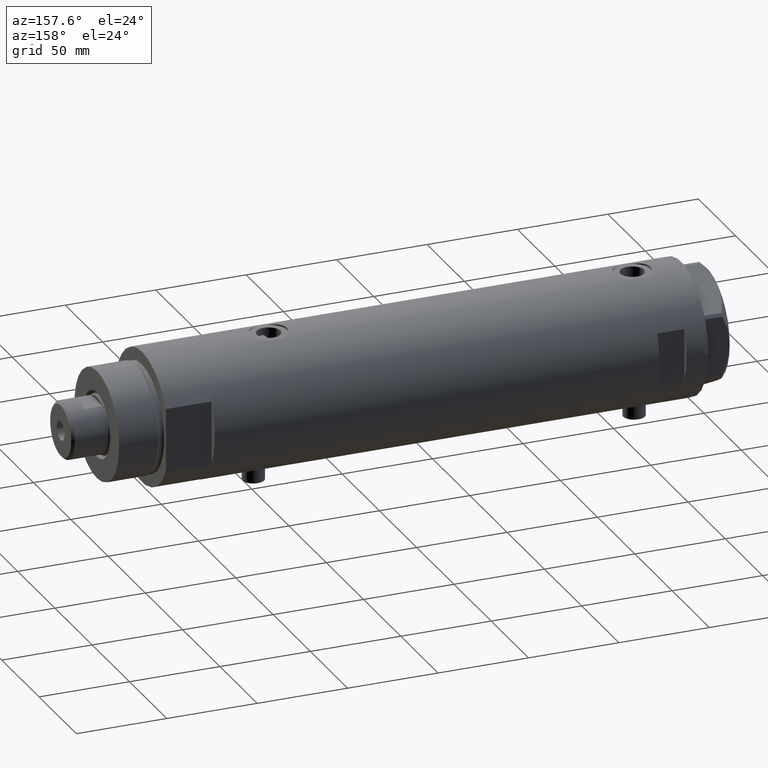
[diagram: clean part render]
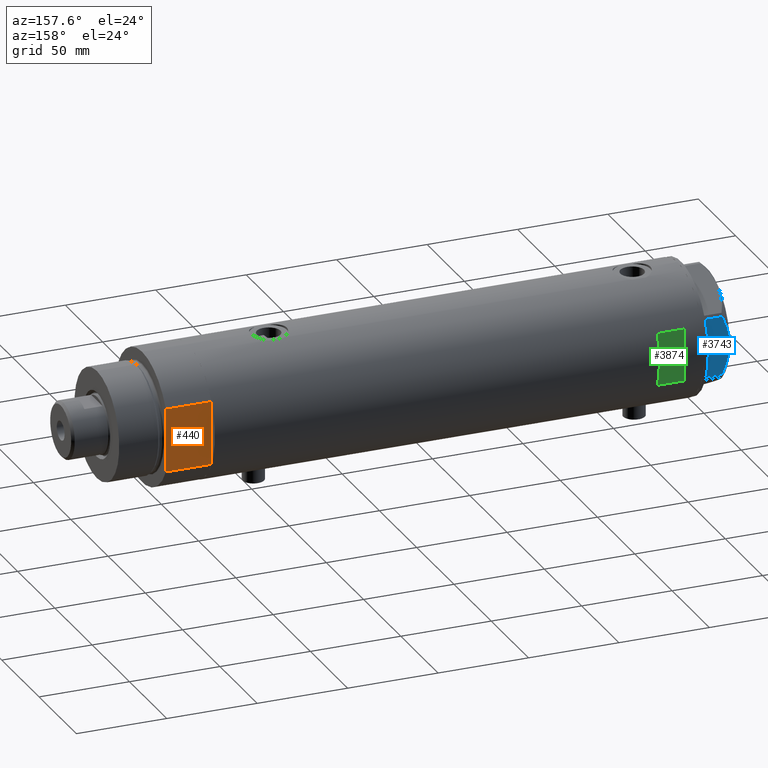
[diagram: same view with three faces highlighted in distinct colors, each labeled with its STEP entity id]
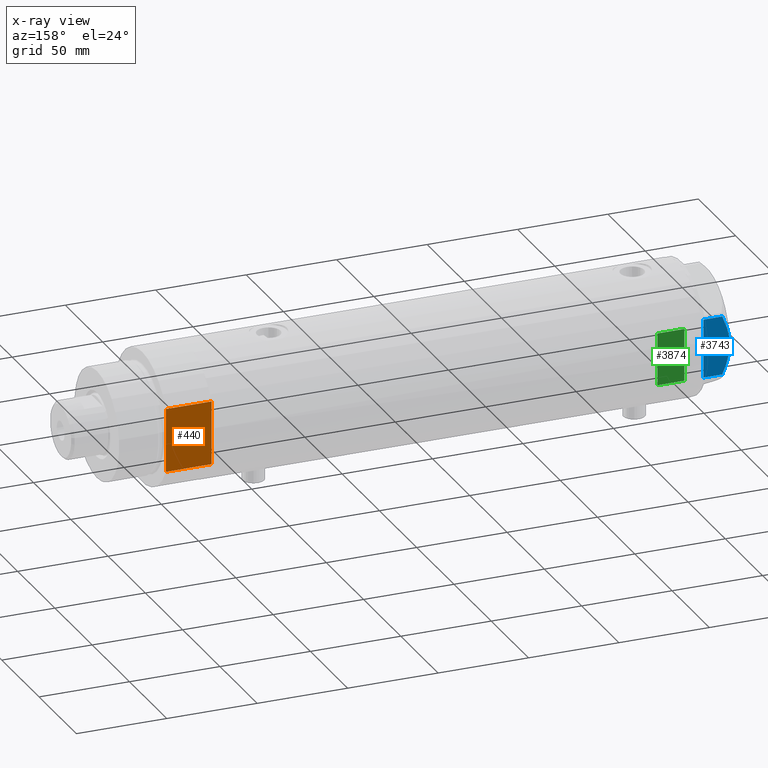
[diagram: x-ray of the same camera — body ghosted, the three highlighted faces saturated]
A machine part, auxiliary view with three faces highlighted in distinct colors.
The next image is the same camera in x-ray (body ghosted, the three faces saturated) — at least one of them is partly hidden behind the body in this view.
Their STEP definitions:

[orange] entity #440 — the highlighted planar face has unit normal (0, -1, -0).
#168 = DIRECTION ( 'NONE',  ( 1.000000000000000000, 0.000000000000000000, 0.000000000000000000 ) ) ;
#291 = VECTOR ( 'NONE', #3776, 1000.000000000000000 ) ;
#415 = LINE ( 'NONE', #3159, #291 ) ;
#440 = ADVANCED_FACE ( 'NONE', ( #4405 ), #604, .F. ) ;
#586 = EDGE_CURVE ( 'NONE', #838, #1451, #415, .T. ) ;
#604 = PLANE ( 'NONE',  #3197 ) ;
#838 = VERTEX_POINT ( 'NONE', #2931 ) ;
#855 = ORIENTED_EDGE ( 'NONE', *, *, #2961, .F. ) ;
#959 = CARTESIAN_POINT ( 'NONE',  ( 17.55704986607943496, 32.00000000000000000, 25.19999999999999929 ) ) ;
#1029 = VECTOR ( 'NONE', #4333, 1000.000000000000000 ) ;
#1115 = EDGE_CURVE ( 'NONE', #2653, #838, #3938, .T. ) ;
#1172 = CARTESIAN_POINT ( 'NONE',  ( -17.55704986607943141, 32.00000000000000000, 0.000000000000000000 ) ) ;
#1213 = CARTESIAN_POINT ( 'NONE',  ( 17.55704986607943141, 32.00000000000000000, 0.000000000000000000 ) ) ;
#1451 = VERTEX_POINT ( 'NONE', #3746 ) ;
#1564 = EDGE_CURVE ( 'NONE', #2653, #3581, #2929, .T. ) ;
#1647 = CARTESIAN_POINT ( 'NONE',  ( -17.55704986607943496, 32.00000000000000000, 25.19999999999999929 ) ) ;
#1802 = ORIENTED_EDGE ( 'NONE', *, *, #1115, .F. ) ;
#1814 = EDGE_CURVE ( 'NONE', #3581, #2342, #3893, .T. ) ;
#1849 = ORIENTED_EDGE ( 'NONE', *, *, #1814, .T. ) ;
#1898 = CARTESIAN_POINT ( 'NONE',  ( -17.55704986607943141, 32.00000000000000000, 0.000000000000000000 ) ) ;
#2042 = VECTOR ( 'NONE', #168, 1000.000000000000000 ) ;
#2056 = CARTESIAN_POINT ( 'NONE',  ( -17.55704986607943141, 32.00000000000000000, 0.000000000000000000 ) ) ;
#2219 = DIRECTION ( 'NONE',  ( 1.000000000000000000, 0.000000000000000000, 0.000000000000000000 ) ) ;
#2287 = CARTESIAN_POINT ( 'NONE',  ( -17.55704986607943141, 32.00000000000000000, 0.000000000000000000 ) ) ;
#2342 = VERTEX_POINT ( 'NONE', #959 ) ;
#2434 = EDGE_LOOP ( 'NONE', ( #1849, #855, #3170, #1802, #3633 ) ) ;
#2653 = VERTEX_POINT ( 'NONE', #1172 ) ;
#2685 = DIRECTION ( 'NONE',  ( 0.000000000000000000, -0.000000000000000000, -1.000000000000000000 ) ) ;
#2862 = DIRECTION ( 'NONE',  ( -0.000000000000000000, -0.000000000000000000, 1.000000000000000000 ) ) ;
#2929 = LINE ( 'NONE', #1898, #1029 ) ;
#2931 = CARTESIAN_POINT ( 'NONE',  ( 0.000000000000000000, 32.00000000000000000, 0.000000000000000000 ) ) ;
#2961 = EDGE_CURVE ( 'NONE', #1451, #2342, #3257, .T. ) ;
#3126 = VECTOR ( 'NONE', #2862, 1000.000000000000000 ) ;
#3159 = CARTESIAN_POINT ( 'NONE',  ( -17.55704986607943141, 32.00000000000000000, 0.000000000000000000 ) ) ;
#3170 = ORIENTED_EDGE ( 'NONE', *, *, #586, .F. ) ;
#3197 = AXIS2_PLACEMENT_3D ( 'NONE', #2056, #3659, #2685 ) ;
#3257 = LINE ( 'NONE', #1213, #3126 ) ;
#3581 = VERTEX_POINT ( 'NONE', #1647 ) ;
#3624 = CARTESIAN_POINT ( 'NONE',  ( -17.55704986607943141, 32.00000000000000000, 25.19999999999999929 ) ) ;
#3633 = ORIENTED_EDGE ( 'NONE', *, *, #1564, .T. ) ;
#3659 = DIRECTION ( 'NONE',  ( 0.000000000000000000, -1.000000000000000000, 0.000000000000000000 ) ) ;
#3746 = CARTESIAN_POINT ( 'NONE',  ( 17.55704986607943496, 32.00000000000000000, 0.000000000000000000 ) ) ;
#3776 = DIRECTION ( 'NONE',  ( 1.000000000000000000, 0.000000000000000000, 0.000000000000000000 ) ) ;
#3823 = VECTOR ( 'NONE', #2219, 1000.000000000000000 ) ;
#3893 = LINE ( 'NONE', #3624, #3823 ) ;
#3938 = LINE ( 'NONE', #2287, #2042 ) ;
#4333 = DIRECTION ( 'NONE',  ( -0.000000000000000000, -0.000000000000000000, 1.000000000000000000 ) ) ;
#4405 = FACE_OUTER_BOUND ( 'NONE', #2434, .T. ) ;

[blue] entity #3743 — the highlighted planar face has unit normal (0, -1, -0).
#42 = CARTESIAN_POINT ( 'NONE',  ( 30.00000000000000355, -16.20050807568876294, 0.000000000000000000 ) ) ;
#207 = CARTESIAN_POINT ( 'NONE',  ( 29.99999999999998579, 11.00230860792645871, 12.56933207488872206 ) ) ;
#260 = EDGE_CURVE ( 'NONE', #2824, #3146, #788, .T. ) ;
#294 = CARTESIAN_POINT ( 'NONE',  ( 29.99999999999999289, 16.20050807568875229, 10.40518423703605322 ) ) ;
#505 = CARTESIAN_POINT ( 'NONE',  ( 30.00000000000000000, 1.418661615092703387, 14.47469700449902952 ) ) ;
#573 = CARTESIAN_POINT ( 'NONE',  ( 30.00000000000000000, -2.830925467268480933, 14.50000000000000355 ) ) ;
#608 = VECTOR ( 'NONE', #2448, 1000.000000000000000 ) ;
#647 = VERTEX_POINT ( 'NONE', #2486 ) ;
#722 = PLANE ( 'NONE',  #3769 ) ;
#788 = LINE ( 'NONE', #1813, #2766 ) ;
#985 = ORIENTED_EDGE ( 'NONE', *, *, #1631, .F. ) ;
#1131 = CARTESIAN_POINT ( 'NONE',  ( 30.00000000000000355, -17.32050807568877460, 14.50000000000000000 ) ) ;
#1201 = CARTESIAN_POINT ( 'NONE',  ( 30.00000000000000000, 9.013887592422954582E-15, 14.50000000000000000 ) ) ;
#1274 = CARTESIAN_POINT ( 'NONE',  ( 30.00000000000000355, -10.99748736931233672, 12.55407623651775140 ) ) ;
#1295 = CARTESIAN_POINT ( 'NONE',  ( 30.00000000000000000, -5.593935073701695515, 14.09487059093540751 ) ) ;
#1300 = CARTESIAN_POINT ( 'NONE',  ( 29.99999999999999645, 3.526431665117132574, 14.30125973663612982 ) ) ;
#1343 = CARTESIAN_POINT ( 'NONE',  ( 29.99999999999999645, -14.93680064777130845, 11.00564802993686619 ) ) ;
#1431 = EDGE_LOOP ( 'NONE', ( #2103, #2245, #4148, #4000, #985 ) ) ;
#1448 = VERTEX_POINT ( 'NONE', #294 ) ;
#1461 = CARTESIAN_POINT ( 'NONE',  ( 30.00000000000000355, -16.20050807568876650, 10.40518423703603368 ) ) ;
#1595 = CARTESIAN_POINT ( 'NONE',  ( 30.00000000000000355, -16.20050807568876294, 14.50000000000000000 ) ) ;
#1631 = EDGE_CURVE ( 'NONE', #647, #1448, #4084, .T. ) ;
#1664 = CARTESIAN_POINT ( 'NONE',  ( 29.99999999999999645, -11.66725319103953495, 12.31690447555093115 ) ) ;
#1688 = CARTESIAN_POINT ( 'NONE',  ( 29.99999999999998579, 9.671229349009047738, 13.00645148086949554 ) ) ;
#1708 = CARTESIAN_POINT ( 'NONE',  ( 29.99999999999999289, -9.655259153795981319, 12.99093232113973251 ) ) ;
#1748 = CARTESIAN_POINT ( 'NONE',  ( 29.99999999999999289, 16.20050807568875584, 14.50000000000000000 ) ) ;
#1772 = LINE ( 'NONE', #1748, #608 ) ;
#1813 = CARTESIAN_POINT ( 'NONE',  ( 30.00000000000000355, -17.32050807568877460, 0.000000000000000000 ) ) ;
#1836 = FACE_OUTER_BOUND ( 'NONE', #1431, .T. ) ;
#1842 = VECTOR ( 'NONE', #3936, 1000.000000000000000 ) ;
#1988 = CARTESIAN_POINT ( 'NONE',  ( 30.00000000000000355, -13.64854889245357761, 11.56384586935411107 ) ) ;
#2037 = CARTESIAN_POINT ( 'NONE',  ( 29.99999999999999645, 6.973771051792334141, 13.72753822183687866 ) ) ;
#2103 = ORIENTED_EDGE ( 'NONE', *, *, #2727, .F. ) ;
#2245 = ORIENTED_EDGE ( 'NONE', *, *, #3390, .T. ) ;
#2376 = CARTESIAN_POINT ( 'NONE',  ( 29.99999999999999645, -8.981118657900115210, 13.19130745470828892 ) ) ;
#2381 = CARTESIAN_POINT ( 'NONE',  ( 30.00000000000000000, 15.56759648729806145, 10.70591879357994003 ) ) ;
#2448 = DIRECTION ( 'NONE',  ( 0.000000000000000000, 0.000000000000000000, 1.000000000000000000 ) ) ;
#2486 = CARTESIAN_POINT ( 'NONE',  ( 30.00000000000000000, 9.013887592422954582E-15, 14.50000000000000000 ) ) ;
#2513 = DIRECTION ( 'NONE',  ( 3.004629197474318556E-16, -1.000000000000000000, 0.000000000000000000 ) ) ;
#2615 = CARTESIAN_POINT ( 'NONE',  ( 29.99999999999999289, 13.63320717147166761, 11.55272916346385692 ) ) ;
#2642 = CARTESIAN_POINT ( 'NONE',  ( 29.99999999999998579, 2.827567415490793934, 14.37523681947611287 ) ) ;
#2727 = EDGE_CURVE ( 'NONE', #3717, #647, #3720, .T. ) ;
#2766 = VECTOR ( 'NONE', #4191, 1000.000000000000000 ) ;
#2824 = VERTEX_POINT ( 'NONE', #42 ) ;
#2981 = CARTESIAN_POINT ( 'NONE',  ( 29.99999999999999289, 12.97715359595205520, 11.81918444541430979 ) ) ;
#3070 = CARTESIAN_POINT ( 'NONE',  ( 30.00000000000000000, 9.013887592422954582E-15, 14.50000000000000000 ) ) ;
#3146 = VERTEX_POINT ( 'NONE', #3455 ) ;
#3361 = CARTESIAN_POINT ( 'NONE',  ( 29.99999999999999645, 14.92797448277035066, 10.99622797424085796 ) ) ;
#3390 = EDGE_CURVE ( 'NONE', #3717, #2824, #4361, .T. ) ;
#3455 = CARTESIAN_POINT ( 'NONE',  ( 29.99999999999999289, 16.20050807568875584, 0.000000000000000000 ) ) ;
#3717 = VERTEX_POINT ( 'NONE', #1461 ) ;
#3720 = B_SPLINE_CURVE_WITH_KNOTS ( 'NONE', 3,
 ( #3998, #1343, #1988, #1664, #1274, #1708, #2376, #1295, #573, #3070 ),
 .UNSPECIFIED., .F., .F.,
 ( 4, 2, 2, 2, 4 ),
 ( 0.04501738275285961655, 0.04922240792374714402, 0.05132492050919090776, 0.05342743309463467843, 0.06183748343640974032 ),
 .UNSPECIFIED. ) ;
#3743 = ADVANCED_FACE ( 'NONE', ( #1836 ), #722, .F. ) ;
#3767 = EDGE_CURVE ( 'NONE', #3146, #1448, #1772, .T. ) ;
#3769 = AXIS2_PLACEMENT_3D ( 'NONE', #1131, #4165, #2513 ) ;
#3935 = CARTESIAN_POINT ( 'NONE',  ( 29.99999999999999645, 0.7060353153488403422, 14.50000000000000355 ) ) ;
#3936 = DIRECTION ( 'NONE',  ( 0.000000000000000000, 0.000000000000000000, -1.000000000000000000 ) ) ;
#3998 = CARTESIAN_POINT ( 'NONE',  ( 30.00000000000000355, -16.20050807568876650, 10.40518423703603368 ) ) ;
#4000 = ORIENTED_EDGE ( 'NONE', *, *, #3767, .T. ) ;
#4004 = CARTESIAN_POINT ( 'NONE',  ( 29.99999999999999289, 16.20050807568875229, 10.40518423703605322 ) ) ;
#4084 = B_SPLINE_CURVE_WITH_KNOTS ( 'NONE', 3,
 ( #1201, #3935, #505, #2642, #1300, #4383, #2037, #1688, #207, #2981, #2615, #3361, #2381, #4004 ),
 .UNSPECIFIED., .F., .F.,
 ( 4, 2, 2, 2, 2, 2, 4 ),
 ( 0.06183748343640974032, 0.06393495742991756048, 0.06603243142342538063, 0.07022737941044103482, 0.07442232739745667514, 0.07651980139096450917, 0.07861727538447232932 ),
 .UNSPECIFIED. ) ;
#4148 = ORIENTED_EDGE ( 'NONE', *, *, #260, .T. ) ;
#4165 = DIRECTION ( 'NONE',  ( -1.000000000000000000, -3.004629197474318556E-16, 0.000000000000000000 ) ) ;
#4191 = DIRECTION ( 'NONE',  ( -3.004629197474318063E-16, 1.000000000000000000, 0.000000000000000000 ) ) ;
#4361 = LINE ( 'NONE', #1595, #1842 ) ;
#4383 = CARTESIAN_POINT ( 'NONE',  ( 29.99999999999998934, 5.607365453019633961, 14.01139032121648320 ) ) ;

[green] entity #3874 — the highlighted planar face has unit normal (0, -1, -0).
#15 = EDGE_CURVE ( 'NONE', #39, #277, #1297, .T. ) ;
#39 = VERTEX_POINT ( 'NONE', #970 ) ;
#253 = DIRECTION ( 'NONE',  ( 0.000000000000000000, 0.000000000000000000, 1.000000000000000000 ) ) ;
#277 = VERTEX_POINT ( 'NONE', #3534 ) ;
#337 = EDGE_LOOP ( 'NONE', ( #1230, #2858, #4090, #2671 ) ) ;
#508 = VECTOR ( 'NONE', #1597, 1000.000000000000000 ) ;
#529 = CARTESIAN_POINT ( 'NONE',  ( -36.50000000000000000, 33.50000000000000000, 125.3999999999999773 ) ) ;
#535 = VECTOR ( 'NONE', #2544, 1000.000000000000000 ) ;
#802 = PLANE ( 'NONE',  #3273 ) ;
#960 = VERTEX_POINT ( 'NONE', #2224 ) ;
#970 = CARTESIAN_POINT ( 'NONE',  ( -14.49137674618942917, 33.50000000000000000, 110.3999999999999773 ) ) ;
#1105 = EDGE_CURVE ( 'NONE', #39, #960, #1228, .T. ) ;
#1157 = CARTESIAN_POINT ( 'NONE',  ( -36.50000000000000000, 33.50000000000000000, 110.3999999999999773 ) ) ;
#1166 = CARTESIAN_POINT ( 'NONE',  ( 14.49137674618942739, 33.50000000000000000, -135.4000000000000057 ) ) ;
#1228 = LINE ( 'NONE', #1157, #508 ) ;
#1230 = ORIENTED_EDGE ( 'NONE', *, *, #4329, .T. ) ;
#1297 = LINE ( 'NONE', #4427, #3472 ) ;
#1368 = DIRECTION ( 'NONE',  ( 1.000000000000000000, -0.000000000000000000, -0.000000000000000000 ) ) ;
#1597 = DIRECTION ( 'NONE',  ( 1.000000000000000000, -0.000000000000000000, -0.000000000000000000 ) ) ;
#1856 = DIRECTION ( 'NONE',  ( 0.000000000000000000, 0.000000000000000000, -1.000000000000000000 ) ) ;
#1982 = VERTEX_POINT ( 'NONE', #3627 ) ;
#2224 = CARTESIAN_POINT ( 'NONE',  ( 14.49137674618942917, 33.50000000000000000, 110.3999999999999773 ) ) ;
#2544 = DIRECTION ( 'NONE',  ( -0.000000000000000000, -0.000000000000000000, -1.000000000000000000 ) ) ;
#2609 = DIRECTION ( 'NONE',  ( 0.000000000000000000, -1.000000000000000000, -0.000000000000000000 ) ) ;
#2671 = ORIENTED_EDGE ( 'NONE', *, *, #3987, .T. ) ;
#2858 = ORIENTED_EDGE ( 'NONE', *, *, #1105, .F. ) ;
#3071 = LINE ( 'NONE', #3398, #4066 ) ;
#3230 = FACE_OUTER_BOUND ( 'NONE', #337, .T. ) ;
#3273 = AXIS2_PLACEMENT_3D ( 'NONE', #529, #2609, #1856 ) ;
#3398 = CARTESIAN_POINT ( 'NONE',  ( -36.50000000000000000, 33.50000000000000000, 125.3999999999999773 ) ) ;
#3472 = VECTOR ( 'NONE', #253, 1000.000000000000000 ) ;
#3534 = CARTESIAN_POINT ( 'NONE',  ( -14.49137674618942739, 33.50000000000000000, 125.3999999999999773 ) ) ;
#3627 = CARTESIAN_POINT ( 'NONE',  ( 14.49137674618942739, 33.50000000000000000, 125.3999999999999773 ) ) ;
#3874 = ADVANCED_FACE ( 'NONE', ( #3230 ), #802, .F. ) ;
#3987 = EDGE_CURVE ( 'NONE', #277, #1982, #3071, .T. ) ;
#4066 = VECTOR ( 'NONE', #1368, 1000.000000000000000 ) ;
#4090 = ORIENTED_EDGE ( 'NONE', *, *, #15, .T. ) ;
#4250 = LINE ( 'NONE', #1166, #535 ) ;
#4329 = EDGE_CURVE ( 'NONE', #1982, #960, #4250, .T. ) ;
#4427 = CARTESIAN_POINT ( 'NONE',  ( -14.49137674618942739, 33.50000000000000000, -135.4000000000000057 ) ) ;